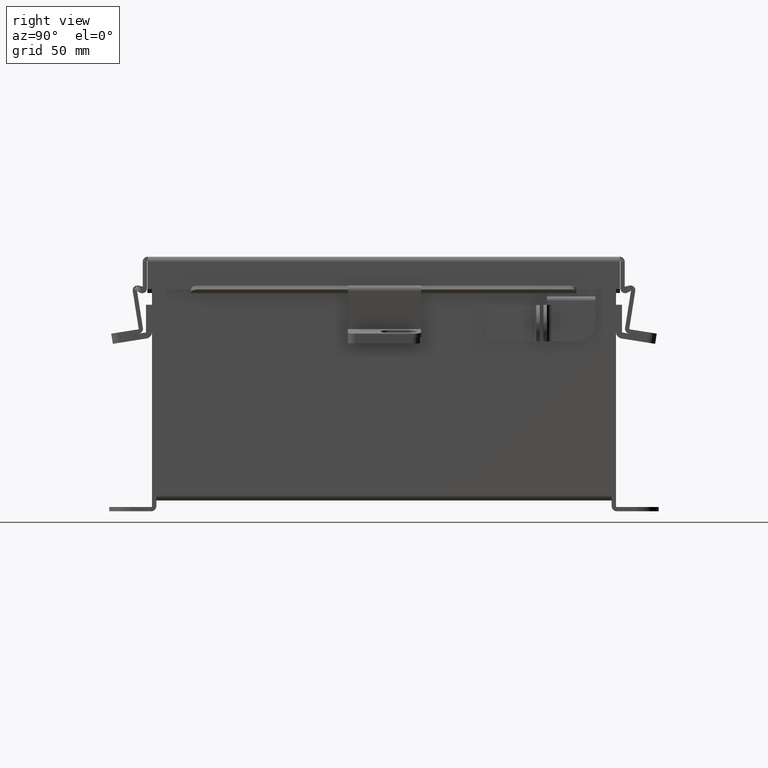
[diagram: clean part render]
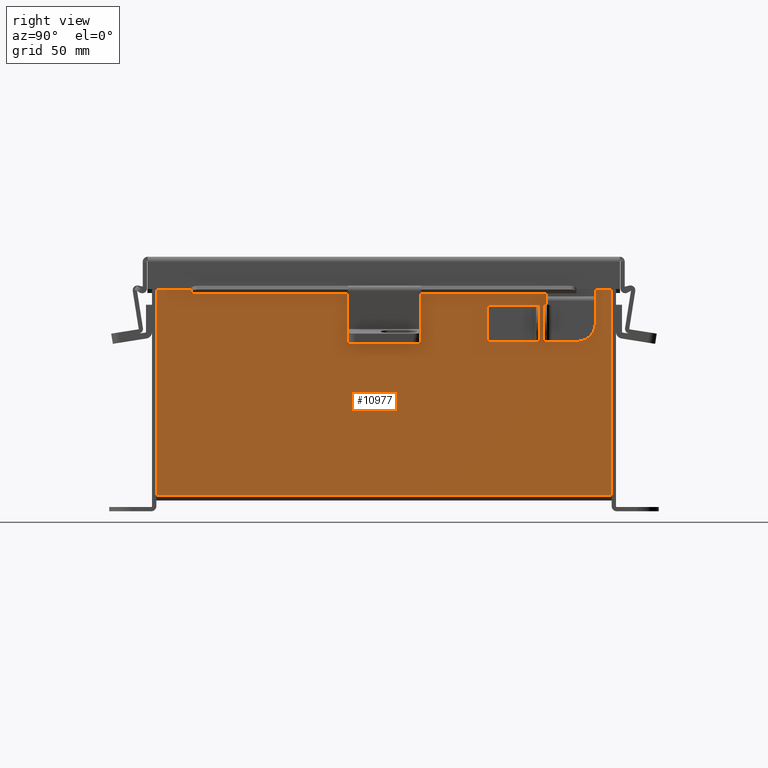
[diagram: same view with one face highlighted and labeled with its STEP entity id]
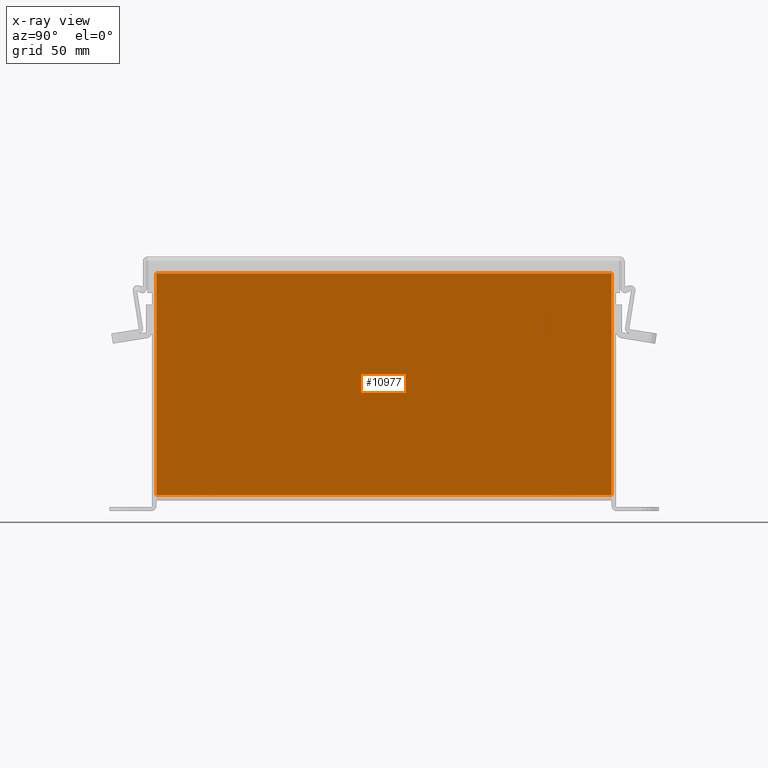
[diagram: x-ray of the same camera — body ghosted, the highlighted face saturated]
A machine part, right view. The second image highlights one B-rep face of the part: STEP entity #10977.
The next image is the same camera in x-ray: the body ghosted, the highlighted face saturated — about 0% of this face is hidden behind the body in this view.
In plain terms, the highlighted planar face has unit normal (-1, 0, 0).
Its self-contained STEP definition (entity closure, byte-faithful):
#2012 = CARTESIAN_POINT ( 'NONE',  ( 3.000000000000014700, -3.925299999999999100, 3.837600000000000600 ) ) ;
#2190 = FACE_OUTER_BOUND ( 'NONE', #9456, .T. ) ;
#2732 = VECTOR ( 'NONE', #15338, 39.37007874015748100 ) ;
#2954 = AXIS2_PLACEMENT_3D ( 'NONE', #13693, #6601, #14887 ) ;
#3372 = VERTEX_POINT ( 'NONE', #11616 ) ;
#4487 = DIRECTION ( 'NONE',  ( -3.547301710985643000E-015, 0.0000000000000000000, -1.000000000000000000 ) ) ;
#4710 = CARTESIAN_POINT ( 'NONE',  ( 3.000000000000013800, 3.925299999999999100, 3.837600000000000600 ) ) ;
#4865 = VECTOR ( 'NONE', #4487, 39.37007874015748100 ) ;
#5645 = ORIENTED_EDGE ( 'NONE', *, *, #8364, .F. ) ;
#5785 = CARTESIAN_POINT ( 'NONE',  ( 3.000000000000000900, 3.925300000000000500, 0.01299999999999984300 ) ) ;
#6168 = LINE ( 'NONE', #13762, #8579 ) ;
#6601 = DIRECTION ( 'NONE',  ( -1.000000000000000000, 0.0000000000000000000, 3.547301710985643000E-015 ) ) ;
#7069 = CARTESIAN_POINT ( 'NONE',  ( 3.000000000000000900, 3.925300000000000500, -9.791967652290343300E-015 ) ) ;
#7255 = LINE ( 'NONE', #4710, #7643 ) ;
#7643 = VECTOR ( 'NONE', #12991, 39.37007874015748100 ) ;
#8001 = VERTEX_POINT ( 'NONE', #8290 ) ;
#8020 = LINE ( 'NONE', #12722, #4865 ) ;
#8290 = CARTESIAN_POINT ( 'NONE',  ( 3.000000000000013800, 3.925299999999999100, 3.837600000000000600 ) ) ;
#8364 = EDGE_CURVE ( 'NONE', #14483, #3372, #6168, .T. ) ;
#8579 = VECTOR ( 'NONE', #11456, 39.37007874015748100 ) ;
#8680 = LINE ( 'NONE', #7069, #2732 ) ;
#9134 = ORIENTED_EDGE ( 'NONE', *, *, #11212, .T. ) ;
#9246 = EDGE_CURVE ( 'NONE', #8001, #13674, #7255, .T. ) ;
#9456 = EDGE_LOOP ( 'NONE', ( #10772, #10999, #5645, #9134 ) ) ;
#10772 = ORIENTED_EDGE ( 'NONE', *, *, #9246, .T. ) ;
#10977 = ADVANCED_FACE ( 'NONE', ( #2190 ), #11345, .F. ) ;
#10999 = ORIENTED_EDGE ( 'NONE', *, *, #13751, .T. ) ;
#11212 = EDGE_CURVE ( 'NONE', #14483, #8001, #8680, .T. ) ;
#11345 = PLANE ( 'NONE',  #2954 ) ;
#11456 = DIRECTION ( 'NONE',  ( -0.0000000000000000000, -1.000000000000000000, -0.0000000000000000000 ) ) ;
#11616 = CARTESIAN_POINT ( 'NONE',  ( 3.000000000000000900, -3.925299999999999100, 0.01299999999999984300 ) ) ;
#12722 = CARTESIAN_POINT ( 'NONE',  ( 3.000000000000000900, -3.925299999999999100, -1.090178089971645100E-014 ) ) ;
#12991 = DIRECTION ( 'NONE',  ( -0.0000000000000000000, -1.000000000000000000, -0.0000000000000000000 ) ) ;
#13674 = VERTEX_POINT ( 'NONE', #2012 ) ;
#13693 = CARTESIAN_POINT ( 'NONE',  ( 3.000000000000000900, 0.0000000000000000000, -1.090178089971645100E-014 ) ) ;
#13751 = EDGE_CURVE ( 'NONE', #13674, #3372, #8020, .T. ) ;
#13762 = CARTESIAN_POINT ( 'NONE',  ( 3.000000000000000900, -3.925299999999999100, 0.01299999999999984300 ) ) ;
#14483 = VERTEX_POINT ( 'NONE', #5785 ) ;
#14887 = DIRECTION ( 'NONE',  ( 3.547301710985643000E-015, 0.0000000000000000000, 1.000000000000000000 ) ) ;
#15338 = DIRECTION ( 'NONE',  ( 3.547301710985643000E-015, -2.837841368788514100E-016, 1.000000000000000000 ) ) ;